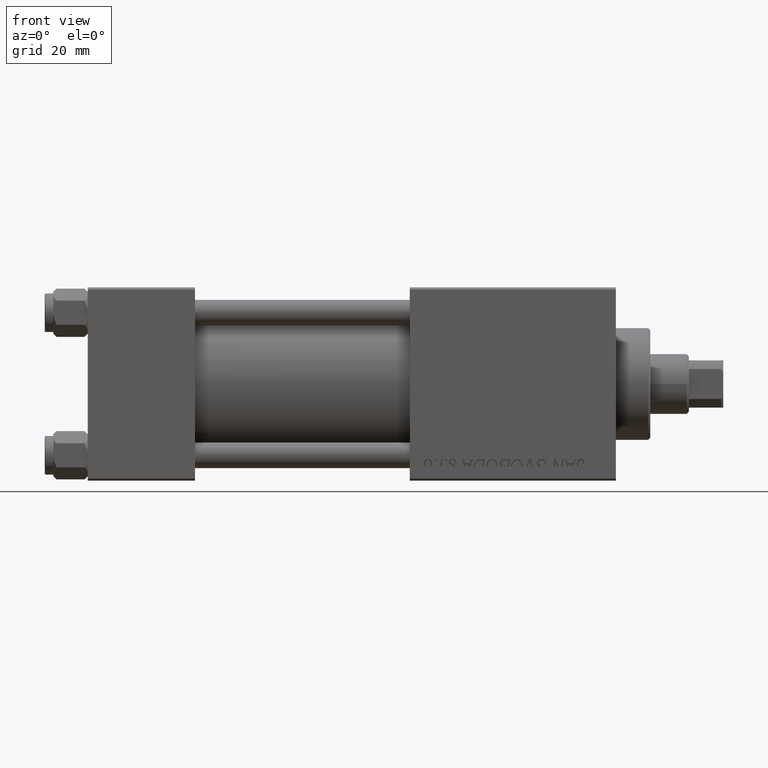
[diagram: clean part render]
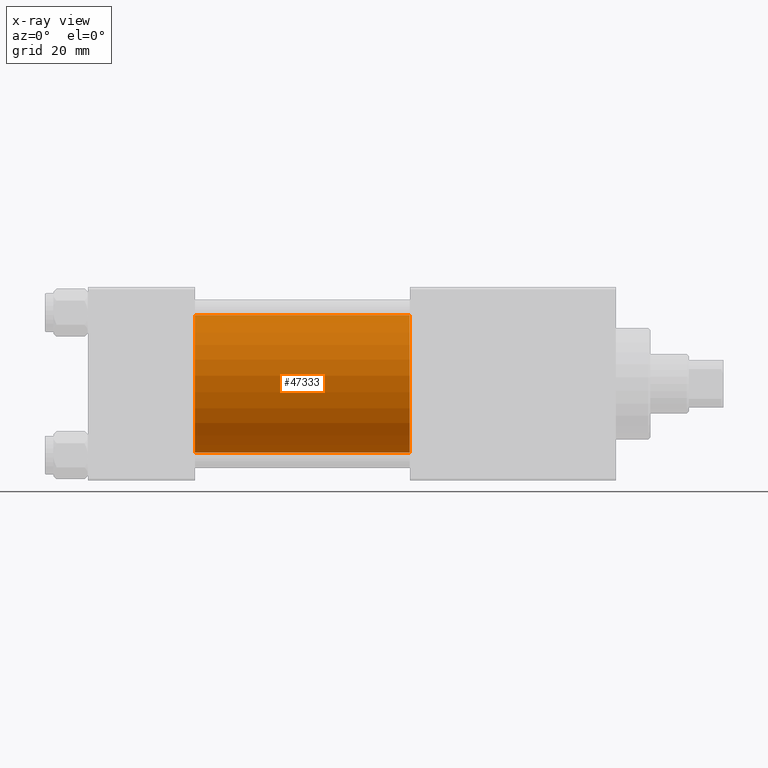
[diagram: x-ray — body ghosted, one internal face saturated and labeled with its STEP entity id]
A machine part, front view, then the same camera in x-ray: the body is ghosted and one INTERNAL B-rep face — a face not visible from any outside direction — is saturated and labeled: STEP entity #47333.
In plain terms, the highlighted cylindrical surface (partial cylindrical patch) has radius 16 mm, axis along (-1, -0, -0).
Its self-contained STEP definition (entity closure, byte-faithful):
#180 = EDGE_CURVE ( 'NONE', #20877, #18342, #4872, .T. ) ;
#925 = VERTEX_POINT ( 'NONE', #43873 ) ;
#2660 = CARTESIAN_POINT ( 'NONE',  ( 75.00000000000001421, -2.602085213965210642E-15, 16.00000000000000000 ) ) ;
#3014 = FACE_OUTER_BOUND ( 'NONE', #39922, .T. ) ;
#3538 = EDGE_CURVE ( 'NONE', #30887, #20877, #20388, .T. ) ;
#4872 = LINE ( 'NONE', #17077, #26770 ) ;
#6287 = DIRECTION ( 'NONE',  ( 1.000000000000000000, 0.000000000000000000, 0.000000000000000000 ) ) ;
#7283 = CARTESIAN_POINT ( 'NONE',  ( 25.00000000000000000, -2.602085213965210642E-15, 0.000000000000000000 ) ) ;
#10530 = DIRECTION ( 'NONE',  ( -1.000000000000000000, -0.000000000000000000, -0.000000000000000000 ) ) ;
#11918 = DIRECTION ( 'NONE',  ( -1.000000000000000000, -0.000000000000000000, -0.000000000000000000 ) ) ;
#17077 = CARTESIAN_POINT ( 'NONE',  ( 75.00000000000001421, -6.426503353294456087E-16, -16.00000000000000000 ) ) ;
#17547 = ORIENTED_EDGE ( 'NONE', *, *, #39674, .F. ) ;
#17821 = CARTESIAN_POINT ( 'NONE',  ( 75.00000000000001421, -6.426503353294456087E-16, -16.00000000000000000 ) ) ;
#17955 = AXIS2_PLACEMENT_3D ( 'NONE', #42592, #38011, #46673 ) ;
#18342 = VERTEX_POINT ( 'NONE', #41595 ) ;
#20388 = CIRCLE ( 'NONE', #17955, 16.00000000000000000 ) ;
#20401 = DIRECTION ( 'NONE',  ( -1.000000000000000000, -0.000000000000000000, -0.000000000000000000 ) ) ;
#20877 = VERTEX_POINT ( 'NONE', #17821 ) ;
#21796 = DIRECTION ( 'NONE',  ( 0.000000000000000000, 0.000000000000000000, -1.000000000000000000 ) ) ;
#23362 = CARTESIAN_POINT ( 'NONE',  ( 75.00000000000001421, -2.602085213965210642E-15, 0.000000000000000000 ) ) ;
#26770 = VECTOR ( 'NONE', #20401, 1000.000000000000000 ) ;
#29042 = CARTESIAN_POINT ( 'NONE',  ( 75.00000000000001421, -2.602085213965210642E-15, 16.00000000000000000 ) ) ;
#30887 = VERTEX_POINT ( 'NONE', #29042 ) ;
#33702 = LINE ( 'NONE', #2660, #44161 ) ;
#35662 = ORIENTED_EDGE ( 'NONE', *, *, #49820, .F. ) ;
#38011 = DIRECTION ( 'NONE',  ( 1.000000000000000000, 0.000000000000000000, 0.000000000000000000 ) ) ;
#38378 = DIRECTION ( 'NONE',  ( 0.000000000000000000, 0.000000000000000000, 1.000000000000000000 ) ) ;
#38495 = AXIS2_PLACEMENT_3D ( 'NONE', #23362, #11918, #38378 ) ;
#39674 = EDGE_CURVE ( 'NONE', #925, #18342, #41975, .T. ) ;
#39922 = EDGE_LOOP ( 'NONE', ( #43785, #48762, #17547, #35662 ) ) ;
#41173 = AXIS2_PLACEMENT_3D ( 'NONE', #7283, #6287, #21796 ) ;
#41595 = CARTESIAN_POINT ( 'NONE',  ( 25.00000000000000000, -6.426503353294456087E-16, -16.00000000000000000 ) ) ;
#41975 = CIRCLE ( 'NONE', #41173, 16.00000000000000000 ) ;
#42592 = CARTESIAN_POINT ( 'NONE',  ( 75.00000000000001421, -2.602085213965210642E-15, 0.000000000000000000 ) ) ;
#43785 = ORIENTED_EDGE ( 'NONE', *, *, #3538, .T. ) ;
#43873 = CARTESIAN_POINT ( 'NONE',  ( 25.00000000000000000, -2.602085213965210642E-15, 16.00000000000000000 ) ) ;
#44161 = VECTOR ( 'NONE', #10530, 1000.000000000000000 ) ;
#46268 = CYLINDRICAL_SURFACE ( 'NONE', #38495, 16.00000000000000000 ) ;
#46673 = DIRECTION ( 'NONE',  ( 0.000000000000000000, 0.000000000000000000, -1.000000000000000000 ) ) ;
#47333 = ADVANCED_FACE ( 'NONE', ( #3014 ), #46268, .F. ) ;
#48762 = ORIENTED_EDGE ( 'NONE', *, *, #180, .T. ) ;
#49820 = EDGE_CURVE ( 'NONE', #30887, #925, #33702, .T. ) ;